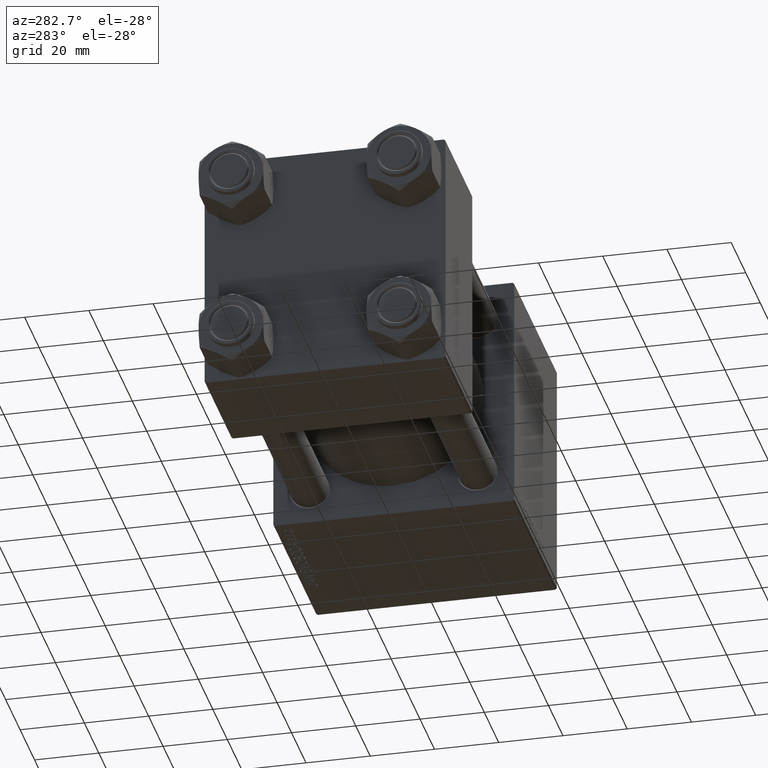
[diagram: clean part render]
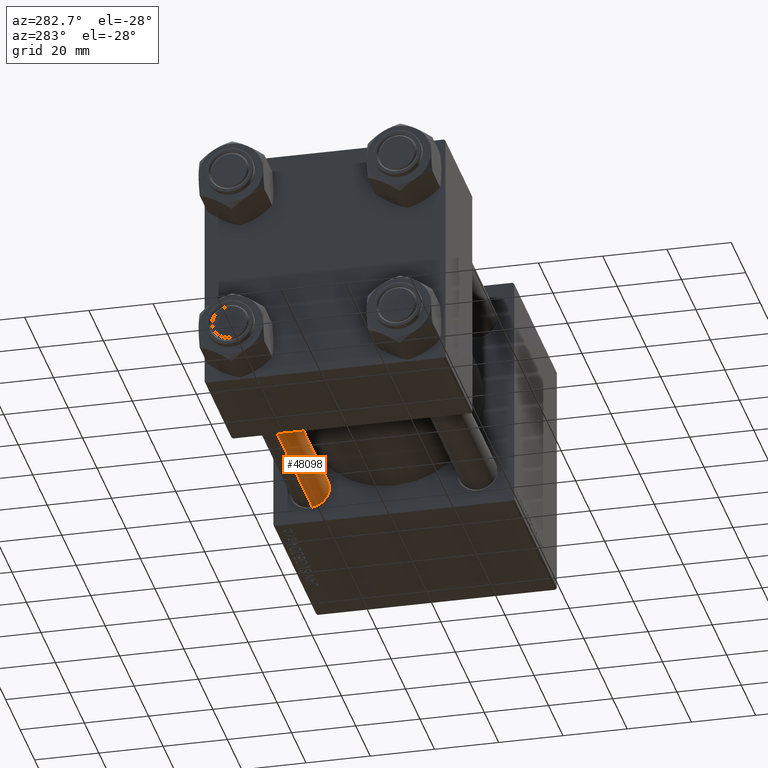
[diagram: same view with one face highlighted and labeled with its STEP entity id]
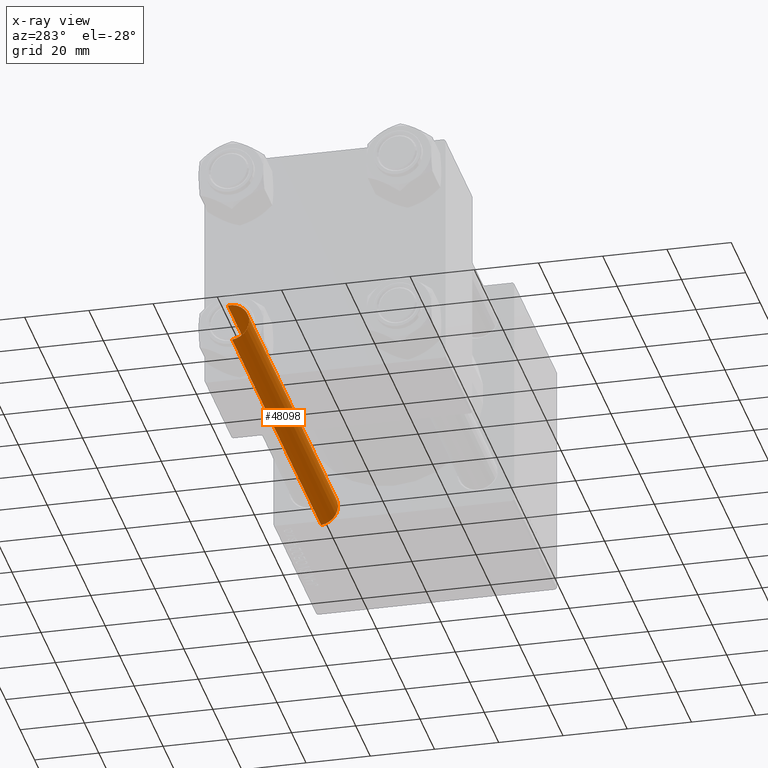
[diagram: x-ray of the same camera — body ghosted, the highlighted face saturated]
A machine part, auxiliary view. The second image highlights one B-rep face of the part: STEP entity #48098.
The next image is the same camera in x-ray: the body ghosted, the highlighted face saturated — about 1% of this face is hidden behind the body in this view.
In plain terms, the highlighted cylindrical surface (edge-blend (fillet) strip) has radius 6 mm, axis along (1, -0, 0).
Its self-contained STEP definition (entity closure, byte-faithful):
#170 = EDGE_CURVE ( 'NONE', #11812, #27014, #6529, .T. ) ;
#440 = CARTESIAN_POINT ( 'NONE',  ( 0.000000000000000000, 0.000000000000000000, 123.5000000000000426 ) ) ;
#1673 = EDGE_CURVE ( 'NONE', #11812, #31808, #33972, .T. ) ;
#1853 = CARTESIAN_POINT ( 'NONE',  ( -6.000000000000000888, 0.000000000000000000, 123.5000000000000426 ) ) ;
#4097 = AXIS2_PLACEMENT_3D ( 'NONE', #440, #24620, #47023 ) ;
#4226 = DIRECTION ( 'NONE',  ( -1.000000000000000000, 0.000000000000000000, 0.000000000000000000 ) ) ;
#4525 = VECTOR ( 'NONE', #34693, 1000.000000000000000 ) ;
#6529 = CIRCLE ( 'NONE', #4097, 6.000000000000000888 ) ;
#7807 = AXIS2_PLACEMENT_3D ( 'NONE', #20269, #16189, #4226 ) ;
#7900 = CARTESIAN_POINT ( 'NONE',  ( -6.000000000000000888, 0.000000000000000000, 0.4999999999999865663 ) ) ;
#9064 = CIRCLE ( 'NONE', #35103, 6.000000000000000888 ) ;
#9098 = CARTESIAN_POINT ( 'NONE',  ( 0.000000000000000000, 0.000000000000000000, 0.4999999999999865663 ) ) ;
#9354 = DIRECTION ( 'NONE',  ( -0.000000000000000000, -0.000000000000000000, 1.000000000000000000 ) ) ;
#9801 = VERTEX_POINT ( 'NONE', #7900 ) ;
#10328 = ORIENTED_EDGE ( 'NONE', *, *, #170, .T. ) ;
#10675 = VECTOR ( 'NONE', #14617, 1000.000000000000000 ) ;
#11812 = VERTEX_POINT ( 'NONE', #46845 ) ;
#14558 = EDGE_CURVE ( 'NONE', #9801, #31808, #9064, .T. ) ;
#14617 = DIRECTION ( 'NONE',  ( -0.000000000000000000, -0.000000000000000000, -1.000000000000000000 ) ) ;
#16189 = DIRECTION ( 'NONE',  ( -0.000000000000000000, -0.000000000000000000, -1.000000000000000000 ) ) ;
#19171 = CARTESIAN_POINT ( 'NONE',  ( -6.000000000000000888, 0.000000000000000000, 124.0000000000000000 ) ) ;
#20269 = CARTESIAN_POINT ( 'NONE',  ( 0.000000000000000000, 0.000000000000000000, 124.0000000000000000 ) ) ;
#20305 = EDGE_LOOP ( 'NONE', ( #42204, #10328, #40684, #21792 ) ) ;
#21792 = ORIENTED_EDGE ( 'NONE', *, *, #14558, .T. ) ;
#24620 = DIRECTION ( 'NONE',  ( 0.000000000000000000, 0.000000000000000000, -1.000000000000000000 ) ) ;
#27014 = VERTEX_POINT ( 'NONE', #1853 ) ;
#28135 = EDGE_CURVE ( 'NONE', #27014, #9801, #42584, .T. ) ;
#31808 = VERTEX_POINT ( 'NONE', #47285 ) ;
#33972 = LINE ( 'NONE', #49730, #10675 ) ;
#34693 = DIRECTION ( 'NONE',  ( -0.000000000000000000, -0.000000000000000000, -1.000000000000000000 ) ) ;
#35103 = AXIS2_PLACEMENT_3D ( 'NONE', #9098, #9354, #40665 ) ;
#35299 = FACE_OUTER_BOUND ( 'NONE', #20305, .T. ) ;
#40665 = DIRECTION ( 'NONE',  ( 1.000000000000000000, 0.000000000000000000, 0.000000000000000000 ) ) ;
#40684 = ORIENTED_EDGE ( 'NONE', *, *, #28135, .T. ) ;
#42204 = ORIENTED_EDGE ( 'NONE', *, *, #1673, .F. ) ;
#42584 = LINE ( 'NONE', #19171, #4525 ) ;
#46845 = CARTESIAN_POINT ( 'NONE',  ( 6.000000000000000888, 7.347880794884120722E-16, 123.5000000000000426 ) ) ;
#46980 = CYLINDRICAL_SURFACE ( 'NONE', #7807, 6.000000000000000888 ) ;
#47023 = DIRECTION ( 'NONE',  ( 1.000000000000000000, 0.000000000000000000, 0.000000000000000000 ) ) ;
#47285 = CARTESIAN_POINT ( 'NONE',  ( 6.000000000000000888, 7.347880794884120722E-16, 0.4999999999999865663 ) ) ;
#48098 = ADVANCED_FACE ( 'NONE', ( #35299 ), #46980, .T. ) ;
#49730 = CARTESIAN_POINT ( 'NONE',  ( 6.000000000000000888, 7.347880794884120722E-16, 124.0000000000000000 ) ) ;